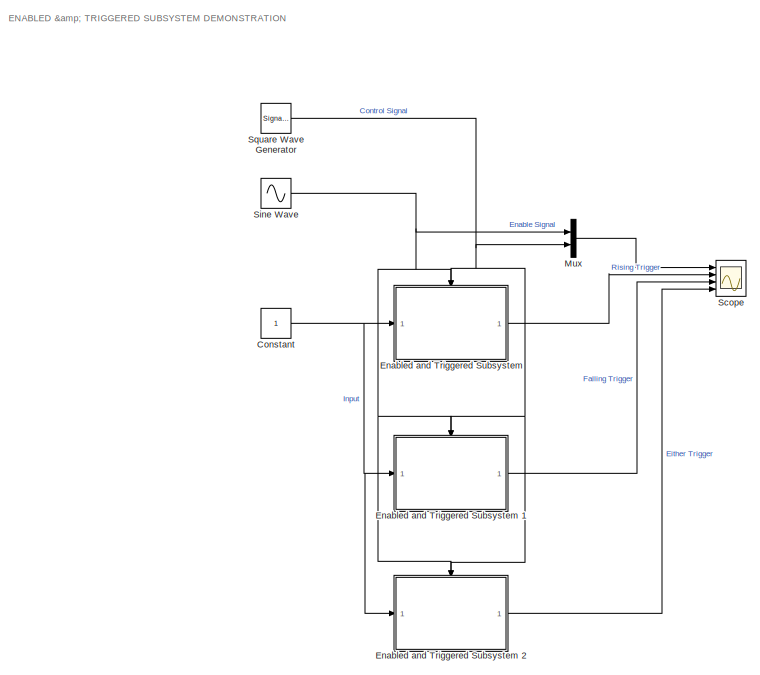
[diagram: root canvas - part 1/2, left side, full height]
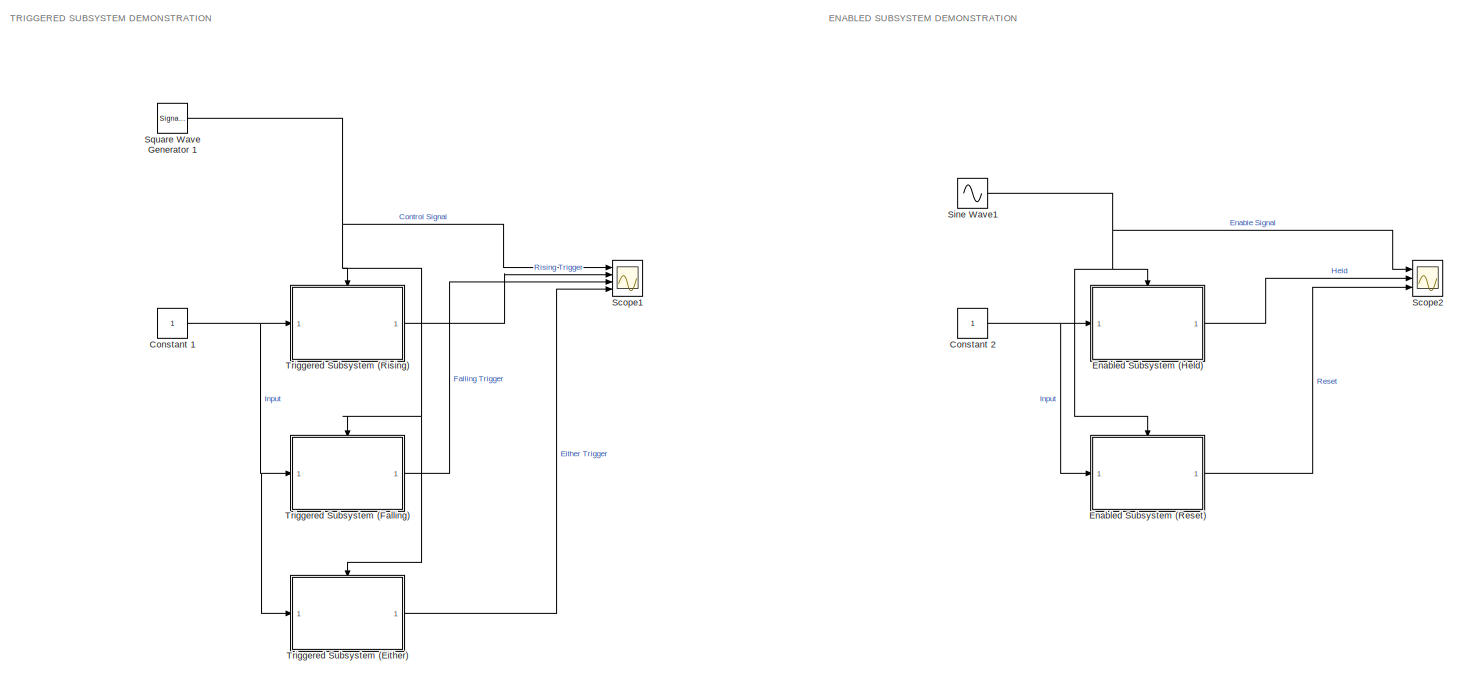
[diagram: root canvas - part 2/2, right side, full height]
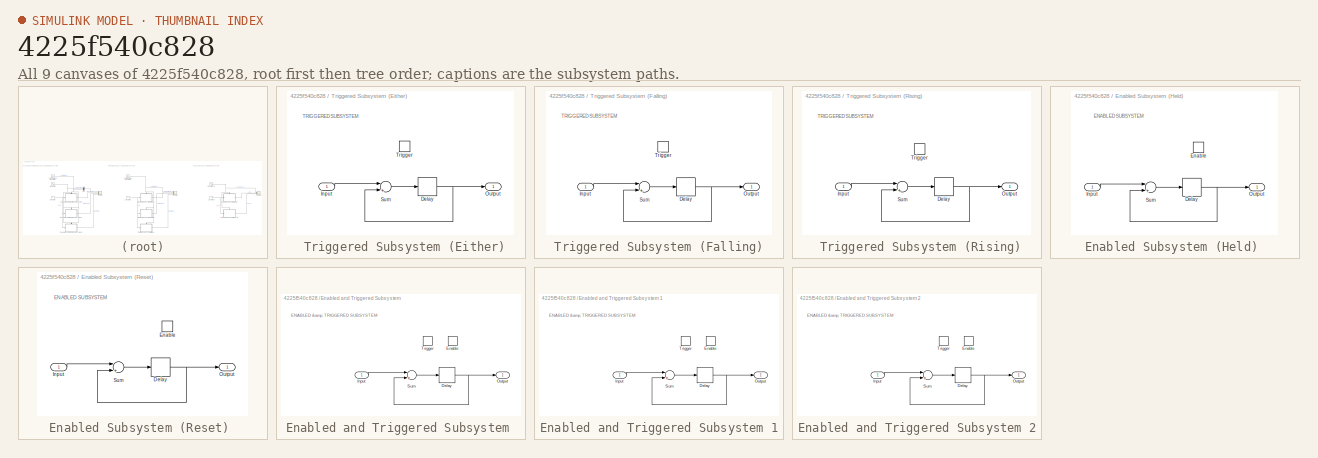
[diagram: thumbnail index - all 9 canvases of the model, root first then tree order]
MODEL slx_4225f540c828
KIND model
CONFIG AbsTol = auto
CONFIG EnableMultiTasking = off
CONFIG FixedStep = 1/200
CONFIG MaxStep = auto
CONFIG MinStep = auto
CONFIG RelTol = 1e-3
CONFIG SampleTimeConstraint = Unconstrained
CONFIG Solver = FixedStepAuto
CONFIG SolverName = FixedStepAuto
CONFIG StartTime = 0.0
CONFIG StopTime = 10.0
BLOCK [SubSystem]  Triggered Subsystem (Either)
  Ports = [1, 1, 0, 1]
  RequestExecContextInheritance = off
  TreatAsAtomicUnit = on
BLOCK [Delay]  Triggered Subsystem (Either)/Delay
  DelayLength = 1
  InputPortMap = u0
  Ports = [1, 1]
BLOCK [Inport]  Triggered Subsystem (Either)/Input
  IconDisplay = Port number
BLOCK [Outport]  Triggered Subsystem (Either)/Output 
  IconDisplay = Port number
BLOCK [Sum]  Triggered Subsystem (Either)/Sum
  InputSameDT = off
  Inputs = |++
  OutDataTypeStr = Inherit: Inherit via internal rule
  Ports = [2, 1]
  SaturateOnIntegerOverflow = off
BLOCK [TriggerPort]  Triggered Subsystem (Either)/Trigger
  Ports = []
  StatesWhenEnabling = held
  TriggerType = either
  VariantControl = Variant
BLOCK [SubSystem]  Triggered Subsystem (Falling) 
  Ports = [1, 1, 0, 1]
  RequestExecContextInheritance = off
  TreatAsAtomicUnit = on
BLOCK [Delay]  Triggered Subsystem (Falling) /Delay
  DelayLength = 1
  InputPortMap = u0
  Ports = [1, 1]
BLOCK [Inport]  Triggered Subsystem (Falling) /Input
  IconDisplay = Port number
BLOCK [Outport]  Triggered Subsystem (Falling) /Output 
  IconDisplay = Port number
BLOCK [Sum]  Triggered Subsystem (Falling) /Sum
  InputSameDT = off
  Inputs = |++
  OutDataTypeStr = Inherit: Inherit via internal rule
  Ports = [2, 1]
  SaturateOnIntegerOverflow = off
BLOCK [TriggerPort]  Triggered Subsystem (Falling) /Trigger
  Ports = []
  StatesWhenEnabling = held
  TriggerType = falling
  VariantControl = Variant
BLOCK [SubSystem]  Triggered Subsystem (Rising)
  Ports = [1, 1, 0, 1]
  RequestExecContextInheritance = off
  TreatAsAtomicUnit = on
BLOCK [Delay]  Triggered Subsystem (Rising)/Delay
  DelayLength = 1
  InputPortMap = u0
  Ports = [1, 1]
BLOCK [Inport]  Triggered Subsystem (Rising)/Input
  IconDisplay = Port number
BLOCK [Outport]  Triggered Subsystem (Rising)/Output 
  IconDisplay = Port number
BLOCK [Sum]  Triggered Subsystem (Rising)/Sum
  InputSameDT = off
  Inputs = |++
  OutDataTypeStr = Inherit: Inherit via internal rule
  Ports = [2, 1]
  SaturateOnIntegerOverflow = off
BLOCK [TriggerPort]  Triggered Subsystem (Rising)/Trigger
  PortDimensions = 1
  Ports = []
  StatesWhenEnabling = held
  VariantControl = Variant
BLOCK [Constant] Constant 
BLOCK [Constant] Constant 1
BLOCK [Constant] Constant 2
BLOCK [SubSystem] Enabled Subsystem (Held) 
  Ports = [1, 1, 1]
  RequestExecContextInheritance = off
  TreatAsAtomicUnit = on
BLOCK [Delay] Enabled Subsystem (Held) /Delay
  DelayLength = 1
  InputPortMap = u0
  Ports = [1, 1]
BLOCK [EnablePort] Enabled Subsystem (Held) /Enable
  Ports = []
BLOCK [Inport] Enabled Subsystem (Held) /Input
  IconDisplay = Port number
BLOCK [Outport] Enabled Subsystem (Held) /Output 
  IconDisplay = Port number
BLOCK [Sum] Enabled Subsystem (Held) /Sum
  InputSameDT = off
  Inputs = |++
  OutDataTypeStr = Inherit: Inherit via internal rule
  Ports = [2, 1]
  SaturateOnIntegerOverflow = off
BLOCK [SubSystem] Enabled Subsystem (Reset) 
  Ports = [1, 1, 1]
  RequestExecContextInheritance = off
  TreatAsAtomicUnit = on
BLOCK [Delay] Enabled Subsystem (Reset) /Delay
  DelayLength = 1
  InputPortMap = u0
  Ports = [1, 1]
BLOCK [EnablePort] Enabled Subsystem (Reset) /Enable
  Ports = []
  StatesWhenEnabling = reset
BLOCK [Inport] Enabled Subsystem (Reset) /Input
  IconDisplay = Port number
BLOCK [Outport] Enabled Subsystem (Reset) /Output 
  IconDisplay = Port number
BLOCK [Sum] Enabled Subsystem (Reset) /Sum
  InputSameDT = off
  Inputs = |++
  OutDataTypeStr = Inherit: Inherit via internal rule
  Ports = [2, 1]
  SaturateOnIntegerOverflow = off
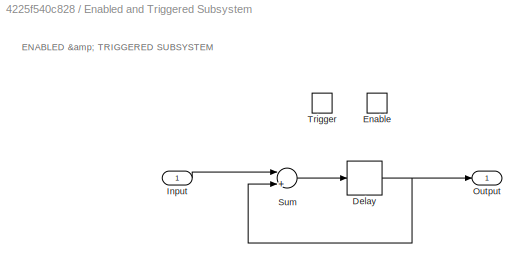
BLOCK [SubSystem] Enabled and Triggered Subsystem 
  Ports = [1, 1, 1, 1]
  RequestExecContextInheritance = off
  TreatAsAtomicUnit = on
BLOCK [Delay] Enabled and Triggered Subsystem /Delay
  DelayLength = 1
  InputPortMap = u0
  Ports = [1, 1]
BLOCK [EnablePort] Enabled and Triggered Subsystem /Enable
  Ports = []
  StatesWhenEnabling = reset
BLOCK [Inport] Enabled and Triggered Subsystem /Input
  IconDisplay = Port number
BLOCK [Outport] Enabled and Triggered Subsystem /Output 
  IconDisplay = Port number
BLOCK [Sum] Enabled and Triggered Subsystem /Sum
  InputSameDT = off
  Inputs = |++
  OutDataTypeStr = Inherit: Inherit via internal rule
  Ports = [2, 1]
  SaturateOnIntegerOverflow = off
BLOCK [TriggerPort] Enabled and Triggered Subsystem /Trigger
  Ports = []
  StatesWhenEnabling = held
  VariantControl = Variant
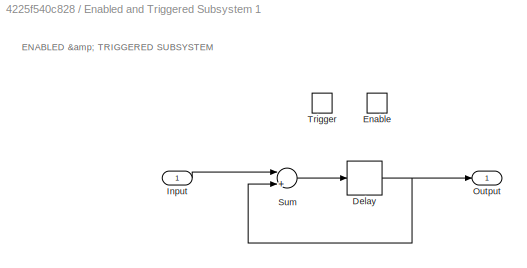
BLOCK [SubSystem] Enabled and Triggered Subsystem 1
  Ports = [1, 1, 1, 1]
  RequestExecContextInheritance = off
  TreatAsAtomicUnit = on
BLOCK [Delay] Enabled and Triggered Subsystem 1/Delay
  DelayLength = 1
  InputPortMap = u0
  Ports = [1, 1]
BLOCK [EnablePort] Enabled and Triggered Subsystem 1/Enable
  Ports = []
  StatesWhenEnabling = reset
BLOCK [Inport] Enabled and Triggered Subsystem 1/Input
  IconDisplay = Port number
BLOCK [Outport] Enabled and Triggered Subsystem 1/Output 
  IconDisplay = Port number
BLOCK [Sum] Enabled and Triggered Subsystem 1/Sum
  InputSameDT = off
  Inputs = |++
  OutDataTypeStr = Inherit: Inherit via internal rule
  Ports = [2, 1]
  SaturateOnIntegerOverflow = off
BLOCK [TriggerPort] Enabled and Triggered Subsystem 1/Trigger
  Ports = []
  StatesWhenEnabling = held
  TriggerType = falling
  VariantControl = Variant
BLOCK [SubSystem] Enabled and Triggered Subsystem 2
  Ports = [1, 1, 1, 1]
  RequestExecContextInheritance = off
  TreatAsAtomicUnit = on
BLOCK [Delay] Enabled and Triggered Subsystem 2/Delay
  DelayLength = 1
  InputPortMap = u0
  Ports = [1, 1]
BLOCK [EnablePort] Enabled and Triggered Subsystem 2/Enable
  Ports = []
  StatesWhenEnabling = reset
BLOCK [Inport] Enabled and Triggered Subsystem 2/Input
  IconDisplay = Port number
BLOCK [Outport] Enabled and Triggered Subsystem 2/Output 
  IconDisplay = Port number
BLOCK [Sum] Enabled and Triggered Subsystem 2/Sum
  InputSameDT = off
  Inputs = |++
  OutDataTypeStr = Inherit: Inherit via internal rule
  Ports = [2, 1]
  SaturateOnIntegerOverflow = off
BLOCK [TriggerPort] Enabled and Triggered Subsystem 2/Trigger
  Ports = []
  StatesWhenEnabling = held
  TriggerType = either
  VariantControl = Variant
BLOCK [Mux] Mux
  DisplayOption = bar
  Inputs = 2
  Ports = [2, 1]
BLOCK [Scope] Scope
  Floating = off
  NumInputPorts = 4
  Ports = [4]
  ScopeSpecificationString = Simulink.scopes.TimeScopeBlockCfg('CurrentConfiguration', extmgr.ConfigurationSet(extmgr.Configuration('Core','General UI',true),extmgr.Configuration('Core','Source UI',true),extmgr.Configuration('Sources','WiredSimulink',true),extmgr.Configuration('Visuals','Time Domain',true,'SerializedDisplays',{struct('MinYLimReal','-1.25','MaxYLimReal','1.25','YLabelReal','','MinYLimMag','0.00000','MaxYLimMag...<+3400ch>
BLOCK [Scope] Scope1
  Floating = off
  NumInputPorts = 4
  Ports = [4]
  ScopeSpecificationString = Simulink.scopes.TimeScopeBlockCfg('CurrentConfiguration', extmgr.ConfigurationSet(extmgr.Configuration('Core','General UI',true),extmgr.Configuration('Core','Source UI',true),extmgr.Configuration('Sources','WiredSimulink',true,'DataLoggingVariableName','ScopeData1'),extmgr.Configuration('Visuals','Time Domain',true,'SerializedDisplays',{struct('MinYLimReal','-1.25','MaxYLimReal','1.25','YLabelReal...<+3422ch>
BLOCK [Scope] Scope2
  Floating = off
  NumInputPorts = 3
  Ports = [3]
  ScopeSpecificationString = Simulink.scopes.TimeScopeBlockCfg('CurrentConfiguration', extmgr.ConfigurationSet(extmgr.Configuration('Core','General UI',true),extmgr.Configuration('Core','Source UI',true),extmgr.Configuration('Sources','WiredSimulink',true,'DataLoggingVariableName','ScopeData2'),extmgr.Configuration('Visuals','Time Domain',true,'SerializedDisplays',{struct('MinYLimReal','-1.25','MaxYLimReal','1.25','YLabelReal...<+2711ch>
BLOCK [Sin] Sine Wave
  Ports = [0, 1]
  SampleTime = 1/200
  Samples = 600
  SineType = Sample based
BLOCK [Sin] Sine Wave1
  Ports = [0, 1]
  SampleTime = 1/200
  Samples = 600
  SineType = Sample based
BLOCK [SignalGenerator] Square Wave Generator 
  Frequency = 7
  Ports = [0, 1]
  Units = rad/sec
  WaveForm = square
BLOCK [SignalGenerator] Square Wave Generator 1
  Frequency = 7
  Ports = [0, 1]
  Units = rad/sec
  WaveForm = square
ANNOTATION (root): ENABLED & TRIGGERED SUBSYSTEM DEMONSTRATION
ANNOTATION (root): ENABLED SUBSYSTEM DEMONSTRATION
ANNOTATION (root): TRIGGERED SUBSYSTEM DEMONSTRATION
ANNOTATION  Triggered Subsystem (Either): TRIGGERED SUBSYSTEM
ANNOTATION  Triggered Subsystem (Falling) : TRIGGERED SUBSYSTEM
ANNOTATION  Triggered Subsystem (Rising): TRIGGERED SUBSYSTEM
ANNOTATION Enabled Subsystem (Held) : ENABLED SUBSYSTEM
ANNOTATION Enabled Subsystem (Reset) : ENABLED SUBSYSTEM
ANNOTATION Enabled and Triggered Subsystem : ENABLED & TRIGGERED SUBSYSTEM
ANNOTATION Enabled and Triggered Subsystem 1: ENABLED & TRIGGERED SUBSYSTEM
ANNOTATION Enabled and Triggered Subsystem 2: ENABLED & TRIGGERED SUBSYSTEM
NET  Triggered Subsystem (Either)/Delay:1 ->  Triggered Subsystem (Either)/Output :1,  Triggered Subsystem (Either)/Sum:2
LINE  Triggered Subsystem (Either)/Input:1 ->  Triggered Subsystem (Either)/Sum:1
LINE  Triggered Subsystem (Either)/Sum:1 ->  Triggered Subsystem (Either)/Delay:1
LINE  Triggered Subsystem (Either):1 -> Scope1:4
NET  Triggered Subsystem (Falling) /Delay:1 ->  Triggered Subsystem (Falling) /Output :1,  Triggered Subsystem (Falling) /Sum:2
LINE  Triggered Subsystem (Falling) /Input:1 ->  Triggered Subsystem (Falling) /Sum:1
LINE  Triggered Subsystem (Falling) /Sum:1 ->  Triggered Subsystem (Falling) /Delay:1
LINE  Triggered Subsystem (Falling) :1 -> Scope1:3
NET  Triggered Subsystem (Rising)/Delay:1 ->  Triggered Subsystem (Rising)/Output :1,  Triggered Subsystem (Rising)/Sum:2
LINE  Triggered Subsystem (Rising)/Input:1 ->  Triggered Subsystem (Rising)/Sum:1
LINE  Triggered Subsystem (Rising)/Sum:1 ->  Triggered Subsystem (Rising)/Delay:1
LINE  Triggered Subsystem (Rising):1 -> Scope1:2
NET Constant 1:1 ->  Triggered Subsystem (Either):1,  Triggered Subsystem (Falling) :1,  Triggered Subsystem (Rising):1
NET Constant 2:1 -> Enabled Subsystem (Held) :1, Enabled Subsystem (Reset) :1
NET Constant :1 -> Enabled and Triggered Subsystem 1:1, Enabled and Triggered Subsystem 2:1, Enabled and Triggered Subsystem :1
NET Enabled Subsystem (Held) /Delay:1 -> Enabled Subsystem (Held) /Output :1, Enabled Subsystem (Held) /Sum:2
LINE Enabled Subsystem (Held) /Input:1 -> Enabled Subsystem (Held) /Sum:1
LINE Enabled Subsystem (Held) /Sum:1 -> Enabled Subsystem (Held) /Delay:1
LINE Enabled Subsystem (Held) :1 -> Scope2:2
NET Enabled Subsystem (Reset) /Delay:1 -> Enabled Subsystem (Reset) /Output :1, Enabled Subsystem (Reset) /Sum:2
LINE Enabled Subsystem (Reset) /Input:1 -> Enabled Subsystem (Reset) /Sum:1
LINE Enabled Subsystem (Reset) /Sum:1 -> Enabled Subsystem (Reset) /Delay:1
LINE Enabled Subsystem (Reset) :1 -> Scope2:3
NET Enabled and Triggered Subsystem /Delay:1 -> Enabled and Triggered Subsystem /Output :1, Enabled and Triggered Subsystem /Sum:2
LINE Enabled and Triggered Subsystem /Input:1 -> Enabled and Triggered Subsystem /Sum:1
LINE Enabled and Triggered Subsystem /Sum:1 -> Enabled and Triggered Subsystem /Delay:1
NET Enabled and Triggered Subsystem 1/Delay:1 -> Enabled and Triggered Subsystem 1/Output :1, Enabled and Triggered Subsystem 1/Sum:2
LINE Enabled and Triggered Subsystem 1/Input:1 -> Enabled and Triggered Subsystem 1/Sum:1
LINE Enabled and Triggered Subsystem 1/Sum:1 -> Enabled and Triggered Subsystem 1/Delay:1
LINE Enabled and Triggered Subsystem 1:1 -> Scope:3
NET Enabled and Triggered Subsystem 2/Delay:1 -> Enabled and Triggered Subsystem 2/Output :1, Enabled and Triggered Subsystem 2/Sum:2
LINE Enabled and Triggered Subsystem 2/Input:1 -> Enabled and Triggered Subsystem 2/Sum:1
LINE Enabled and Triggered Subsystem 2/Sum:1 -> Enabled and Triggered Subsystem 2/Delay:1
LINE Enabled and Triggered Subsystem 2:1 -> Scope:4
LINE Enabled and Triggered Subsystem :1 -> Scope:2
LINE Mux:1 -> Scope:1
NET Sine Wave1:1 -> Enabled Subsystem (Held) :enable, Enabled Subsystem (Reset) :enable, Scope2:1
NET Sine Wave:1 -> Enabled and Triggered Subsystem 1:enable, Enabled and Triggered Subsystem 2:enable, Enabled and Triggered Subsystem :enable, Mux:1
NET Square Wave Generator 1:1 ->  Triggered Subsystem (Either):trigger,  Triggered Subsystem (Falling) :trigger,  Triggered Subsystem (Rising):trigger, Scope1:1
NET Square Wave Generator :1 -> Enabled and Triggered Subsystem 1:trigger, Enabled and Triggered Subsystem 2:trigger, Enabled and Triggered Subsystem :trigger, Mux:2
note: NET lines group one-source signal fan-out (src -> all destinations, sorted); 1:1 wires keep LINE
